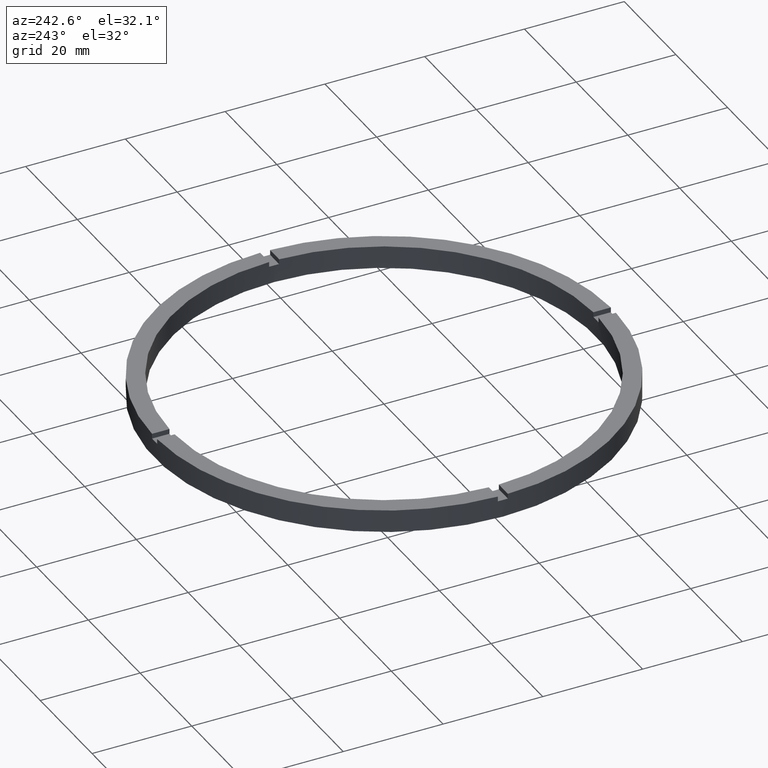
[diagram: clean part render]
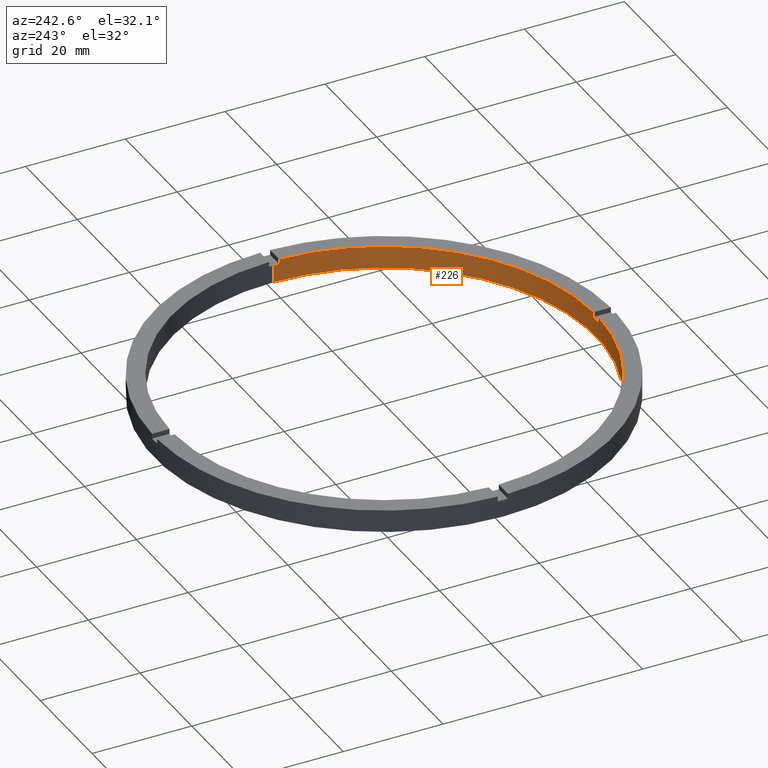
[diagram: same view with one face highlighted and labeled with its STEP entity id]
A machine part, auxiliary view. The second image highlights one B-rep face of the part: STEP entity #226.
In plain terms, the highlighted cylindrical surface (partial cylindrical patch) has radius 42.5 mm, axis along (-0, -0, -1).
Its self-contained STEP definition (entity closure, byte-faithful):
#31 = VERTEX_POINT ( 'NONE', #526 ) ;
#34 = CARTESIAN_POINT ( 'NONE',  ( -1.000000000000158540, -42.48823366533375179, 4.500000000000000000 ) ) ;
#36 = VERTEX_POINT ( 'NONE', #619 ) ;
#45 = CARTESIAN_POINT ( 'NONE',  ( 42.48823366533375179, -1.000000000000156097, 4.500000000000000000 ) ) ;
#46 = DIRECTION ( 'NONE',  ( -0.000000000000000000, -0.000000000000000000, -1.000000000000000000 ) ) ;
#55 = EDGE_CURVE ( 'NONE', #556, #199, #435, .T. ) ;
#63 = AXIS2_PLACEMENT_3D ( 'NONE', #283, #46, #389 ) ;
#70 = DIRECTION ( 'NONE',  ( -0.000000000000000000, -0.000000000000000000, -1.000000000000000000 ) ) ;
#71 = DIRECTION ( 'NONE',  ( 1.000000000000000000, 0.000000000000000000, 0.000000000000000000 ) ) ;
#74 = EDGE_CURVE ( 'NONE', #682, #36, #197, .T. ) ;
#78 = AXIS2_PLACEMENT_3D ( 'NONE', #726, #363, #71 ) ;
#79 = AXIS2_PLACEMENT_3D ( 'NONE', #85, #136, #742 ) ;
#85 = CARTESIAN_POINT ( 'NONE',  ( 0.000000000000000000, 0.000000000000000000, 4.500000000000000000 ) ) ;
#89 = AXIS2_PLACEMENT_3D ( 'NONE', #173, #364, #401 ) ;
#92 = LINE ( 'NONE', #331, #343 ) ;
#96 = EDGE_CURVE ( 'NONE', #295, #36, #179, .T. ) ;
#111 = DIRECTION ( 'NONE',  ( 0.000000000000000000, 0.000000000000000000, 1.000000000000000000 ) ) ;
#114 = CIRCLE ( 'NONE', #78, 42.50000000000000711 ) ;
#131 = VECTOR ( 'NONE', #70, 1000.000000000000000 ) ;
#136 = DIRECTION ( 'NONE',  ( 0.000000000000000000, 0.000000000000000000, 1.000000000000000000 ) ) ;
#138 = AXIS2_PLACEMENT_3D ( 'NONE', #442, #394, #626 ) ;
#151 = DIRECTION ( 'NONE',  ( 1.000000000000000000, 0.000000000000000000, 0.000000000000000000 ) ) ;
#158 = EDGE_CURVE ( 'NONE', #31, #751, #488, .T. ) ;
#162 = DIRECTION ( 'NONE',  ( 0.000000000000000000, 0.000000000000000000, 1.000000000000000000 ) ) ;
#171 = ORIENTED_EDGE ( 'NONE', *, *, #400, .F. ) ;
#173 = CARTESIAN_POINT ( 'NONE',  ( 0.000000000000000000, 0.000000000000000000, 0.000000000000000000 ) ) ;
#176 = ORIENTED_EDGE ( 'NONE', *, *, #451, .F. ) ;
#179 = CIRCLE ( 'NONE', #668, 42.50000000000000711 ) ;
#194 = ORIENTED_EDGE ( 'NONE', *, *, #658, .T. ) ;
#197 = LINE ( 'NONE', #45, #458 ) ;
#199 = VERTEX_POINT ( 'NONE', #34 ) ;
#226 = ADVANCED_FACE ( 'NONE', ( #612 ), #348, .F. ) ;
#242 = ORIENTED_EDGE ( 'NONE', *, *, #576, .F. ) ;
#252 = CIRCLE ( 'NONE', #138, 42.50000000000000711 ) ;
#256 = ORIENTED_EDGE ( 'NONE', *, *, #55, .T. ) ;
#283 = CARTESIAN_POINT ( 'NONE',  ( 0.000000000000000000, 0.000000000000000000, 4.500000000000000000 ) ) ;
#284 = EDGE_CURVE ( 'NONE', #682, #728, #625, .T. ) ;
#293 = VERTEX_POINT ( 'NONE', #356 ) ;
#295 = VERTEX_POINT ( 'NONE', #308 ) ;
#298 = EDGE_CURVE ( 'NONE', #556, #712, #366, .T. ) ;
#308 = CARTESIAN_POINT ( 'NONE',  ( 0.9999999999998414602, -42.48823366533375889, 4.500000000000000000 ) ) ;
#318 = DIRECTION ( 'NONE',  ( 1.000000000000000000, 0.000000000000000000, 0.000000000000000000 ) ) ;
#328 = EDGE_CURVE ( 'NONE', #293, #473, #114, .T. ) ;
#331 = CARTESIAN_POINT ( 'NONE',  ( 0.9999999999998414602, -42.48823366533375889, 4.500000000000000000 ) ) ;
#334 = CARTESIAN_POINT ( 'NONE',  ( -42.48823366533375179, -1.000000000000029532, 3.499999999999999556 ) ) ;
#339 = CARTESIAN_POINT ( 'NONE',  ( 42.50000000000000711, 5.204748896376252474E-15, 3.499999999999999556 ) ) ;
#343 = VECTOR ( 'NONE', #376, 1000.000000000000000 ) ;
#348 = CYLINDRICAL_SURFACE ( 'NONE', #63, 42.50000000000000711 ) ;
#356 = CARTESIAN_POINT ( 'NONE',  ( -1.000000000000158540, -42.48823366533375179, 3.499999999999999556 ) ) ;
#363 = DIRECTION ( 'NONE',  ( -0.000000000000000000, 0.000000000000000000, 1.000000000000000000 ) ) ;
#364 = DIRECTION ( 'NONE',  ( 0.000000000000000000, 0.000000000000000000, 1.000000000000000000 ) ) ;
#365 = VECTOR ( 'NONE', #410, 1000.000000000000000 ) ;
#366 = LINE ( 'NONE', #405, #365 ) ;
#376 = DIRECTION ( 'NONE',  ( -0.000000000000000000, -0.000000000000000000, -1.000000000000000000 ) ) ;
#387 = CARTESIAN_POINT ( 'NONE',  ( -42.48823366533375179, -1.000000000000029532, 4.500000000000000000 ) ) ;
#389 = DIRECTION ( 'NONE',  ( -1.000000000000000000, 0.000000000000000000, 0.000000000000000000 ) ) ;
#394 = DIRECTION ( 'NONE',  ( 0.000000000000000000, 0.000000000000000000, 1.000000000000000000 ) ) ;
#400 = EDGE_CURVE ( 'NONE', #295, #473, #92, .T. ) ;
#401 = DIRECTION ( 'NONE',  ( 1.000000000000000000, 0.000000000000000000, 0.000000000000000000 ) ) ;
#405 = CARTESIAN_POINT ( 'NONE',  ( -42.48823366533375179, -1.000000000000029532, 4.500000000000000000 ) ) ;
#410 = DIRECTION ( 'NONE',  ( -0.000000000000000000, -0.000000000000000000, -1.000000000000000000 ) ) ;
#435 = CIRCLE ( 'NONE', #79, 42.50000000000000711 ) ;
#441 = ORIENTED_EDGE ( 'NONE', *, *, #729, .T. ) ;
#442 = CARTESIAN_POINT ( 'NONE',  ( 0.000000000000000000, 0.000000000000000000, 3.499999999999999556 ) ) ;
#449 = VERTEX_POINT ( 'NONE', #596 ) ;
#451 = EDGE_CURVE ( 'NONE', #449, #31, #652, .T. ) ;
#458 = VECTOR ( 'NONE', #667, 1000.000000000000000 ) ;
#469 = AXIS2_PLACEMENT_3D ( 'NONE', #718, #162, #151 ) ;
#473 = VERTEX_POINT ( 'NONE', #677 ) ;
#488 = CIRCLE ( 'NONE', #89, 42.50000000000000711 ) ;
#496 = DIRECTION ( 'NONE',  ( -0.000000000000000000, -0.000000000000000000, -1.000000000000000000 ) ) ;
#501 = VECTOR ( 'NONE', #496, 1000.000000000000000 ) ;
#507 = ORIENTED_EDGE ( 'NONE', *, *, #158, .F. ) ;
#526 = CARTESIAN_POINT ( 'NONE',  ( -42.50000000000000711, 0.000000000000000000, 0.000000000000000000 ) ) ;
#528 = LINE ( 'NONE', #778, #767 ) ;
#532 = LINE ( 'NONE', #555, #501 ) ;
#555 = CARTESIAN_POINT ( 'NONE',  ( 42.50000000000000711, 5.204748896376252474E-15, 4.500000000000000000 ) ) ;
#556 = VERTEX_POINT ( 'NONE', #387 ) ;
#576 = EDGE_CURVE ( 'NONE', #293, #199, #528, .T. ) ;
#583 = CARTESIAN_POINT ( 'NONE',  ( 42.48823366533375179, -1.000000000000156097, 3.499999999999999556 ) ) ;
#586 = CARTESIAN_POINT ( 'NONE',  ( 42.50000000000000711, 5.204748896376252474E-15, 0.000000000000000000 ) ) ;
#596 = CARTESIAN_POINT ( 'NONE',  ( -42.50000000000000711, 0.000000000000000000, 3.499999999999999556 ) ) ;
#612 = FACE_OUTER_BOUND ( 'NONE', #780, .T. ) ;
#619 = CARTESIAN_POINT ( 'NONE',  ( 42.48823366533375179, -1.000000000000156097, 4.500000000000000000 ) ) ;
#625 = CIRCLE ( 'NONE', #469, 42.50000000000000711 ) ;
#626 = DIRECTION ( 'NONE',  ( 1.000000000000000000, 0.000000000000000000, 0.000000000000000000 ) ) ;
#634 = DIRECTION ( 'NONE',  ( 0.000000000000000000, 0.000000000000000000, 1.000000000000000000 ) ) ;
#652 = LINE ( 'NONE', #678, #131 ) ;
#657 = CARTESIAN_POINT ( 'NONE',  ( 0.000000000000000000, 0.000000000000000000, 4.500000000000000000 ) ) ;
#658 = EDGE_CURVE ( 'NONE', #728, #751, #532, .T. ) ;
#667 = DIRECTION ( 'NONE',  ( 0.000000000000000000, 0.000000000000000000, 1.000000000000000000 ) ) ;
#668 = AXIS2_PLACEMENT_3D ( 'NONE', #657, #111, #318 ) ;
#677 = CARTESIAN_POINT ( 'NONE',  ( 0.9999999999998414602, -42.48823366533375889, 3.499999999999999556 ) ) ;
#678 = CARTESIAN_POINT ( 'NONE',  ( -42.50000000000000711, 0.000000000000000000, 4.500000000000000000 ) ) ;
#682 = VERTEX_POINT ( 'NONE', #583 ) ;
#685 = ORIENTED_EDGE ( 'NONE', *, *, #328, .T. ) ;
#712 = VERTEX_POINT ( 'NONE', #334 ) ;
#718 = CARTESIAN_POINT ( 'NONE',  ( 0.000000000000000000, 0.000000000000000000, 3.499999999999999556 ) ) ;
#726 = CARTESIAN_POINT ( 'NONE',  ( 0.000000000000000000, 0.000000000000000000, 3.499999999999999556 ) ) ;
#728 = VERTEX_POINT ( 'NONE', #339 ) ;
#729 = EDGE_CURVE ( 'NONE', #449, #712, #252, .T. ) ;
#731 = ORIENTED_EDGE ( 'NONE', *, *, #298, .F. ) ;
#742 = DIRECTION ( 'NONE',  ( 1.000000000000000000, 0.000000000000000000, 0.000000000000000000 ) ) ;
#743 = ORIENTED_EDGE ( 'NONE', *, *, #74, .F. ) ;
#745 = ORIENTED_EDGE ( 'NONE', *, *, #284, .T. ) ;
#751 = VERTEX_POINT ( 'NONE', #586 ) ;
#766 = ORIENTED_EDGE ( 'NONE', *, *, #96, .T. ) ;
#767 = VECTOR ( 'NONE', #634, 1000.000000000000000 ) ;
#778 = CARTESIAN_POINT ( 'NONE',  ( -1.000000000000158540, -42.48823366533375179, 4.500000000000000000 ) ) ;
#780 = EDGE_LOOP ( 'NONE', ( #745, #194, #507, #176, #441, #731, #256, #242, #685, #171, #766, #743 ) ) ;